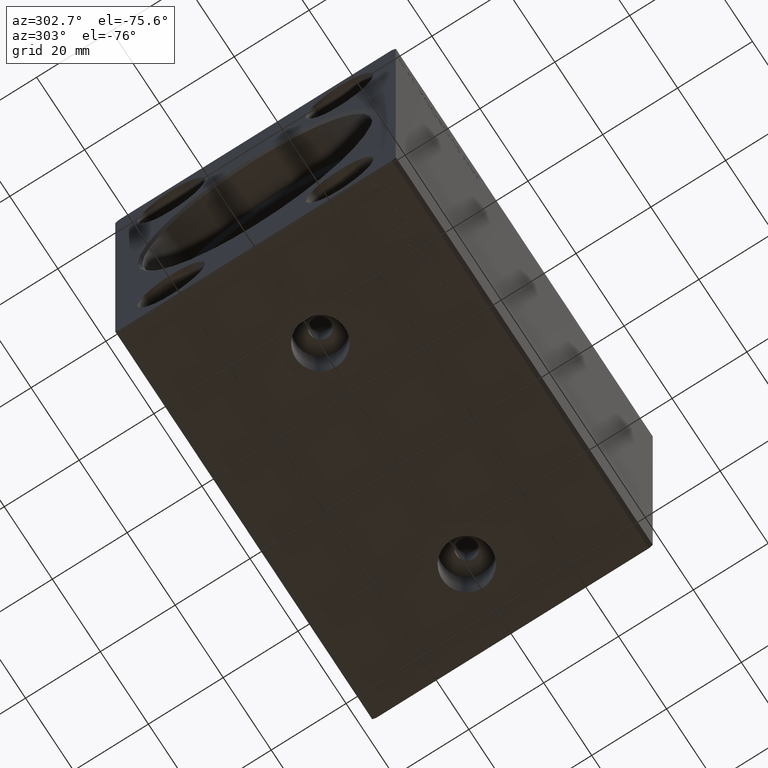
[diagram: clean part render]
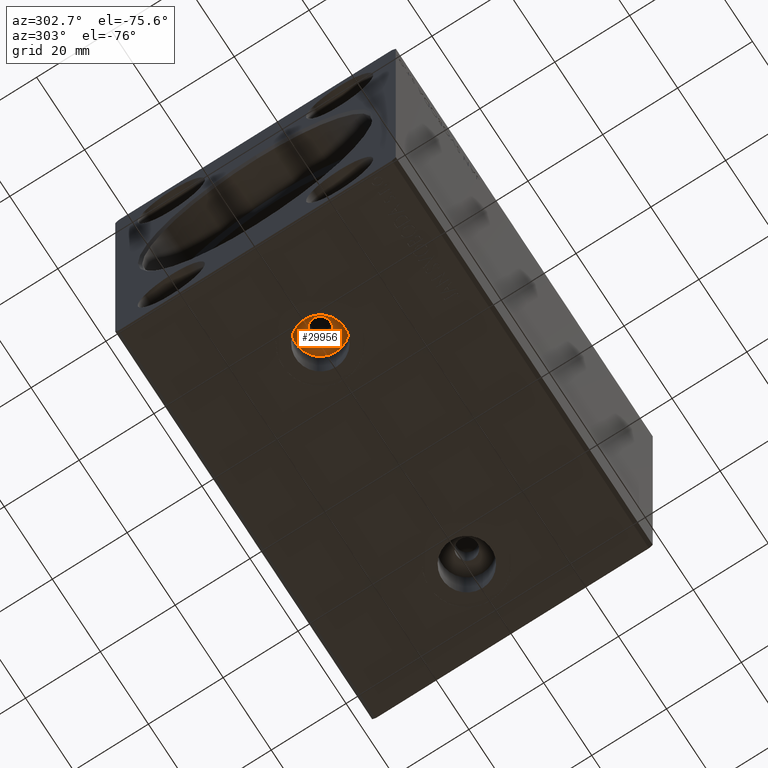
[diagram: same view with one face highlighted and labeled with its STEP entity id]
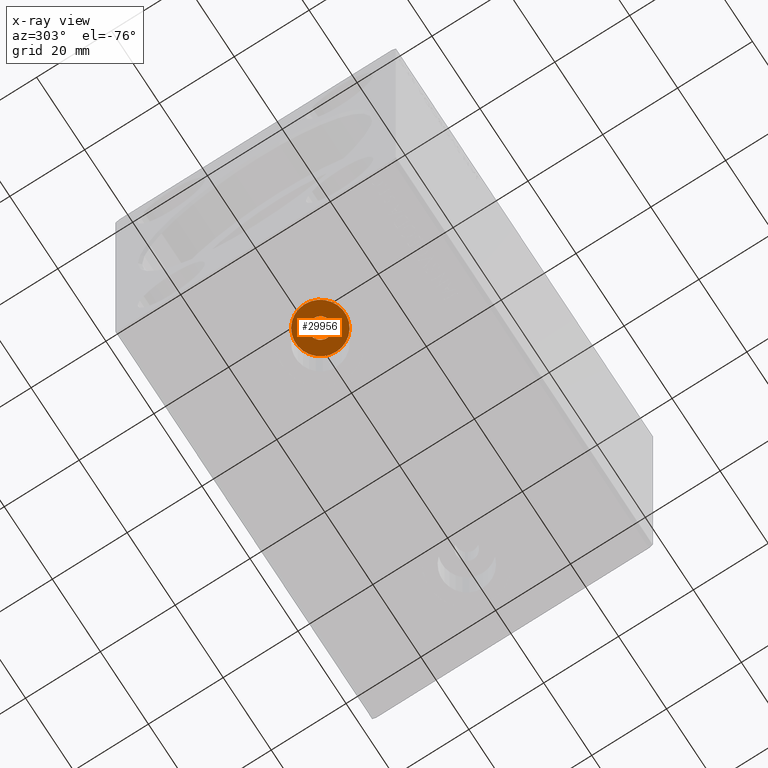
[diagram: x-ray of the same camera — body ghosted, the highlighted face saturated]
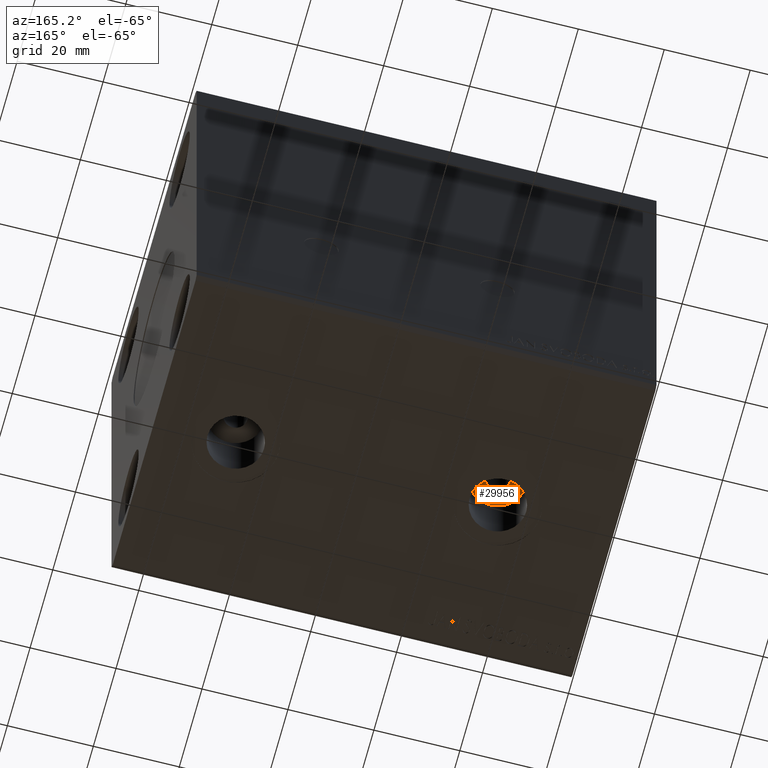
[diagram: same view with one face highlighted and labeled with its STEP entity id]
A machine part, auxiliary view. The second image highlights one B-rep face of the part: STEP entity #29956.
The next image is the same camera in x-ray: the body ghosted, the highlighted face saturated — about 0% of this face is hidden behind the body in this view.
A second angle (auxiliary view) of the same face is appended — the face is thin or edge-on in the first view.
In plain terms, the highlighted planar face has unit normal (0, 0, -1).
Its self-contained STEP definition (entity closure, byte-faithful):
#163 = EDGE_LOOP ( 'NONE', ( #13741, #8207 ) ) ;
#838 = DIRECTION ( 'NONE',  ( -1.000000000000000000, 0.000000000000000000, 0.000000000000000000 ) ) ;
#1193 = DIRECTION ( 'NONE',  ( -1.000000000000000000, 0.000000000000000000, 0.000000000000000000 ) ) ;
#2038 = EDGE_CURVE ( 'NONE', #25038, #18734, #5064, .T. ) ;
#2575 = FACE_BOUND ( 'NONE', #163, .T. ) ;
#2795 = CARTESIAN_POINT ( 'NONE',  ( 20.41999999999999815, -6.135200823405162107E-15, -36.29999999999999716 ) ) ;
#4066 = CARTESIAN_POINT ( 'NONE',  ( 24.25000000000000000, -6.135200823405162107E-15, -36.29999999999999716 ) ) ;
#5064 = CIRCLE ( 'NONE', #27678, 2.749999999999999112 ) ;
#5763 = DIRECTION ( 'NONE',  ( 0.000000000000000000, 0.000000000000000000, -1.000000000000000000 ) ) ;
#7305 = DIRECTION ( 'NONE',  ( 0.000000000000000000, 0.000000000000000000, -1.000000000000000000 ) ) ;
#8207 = ORIENTED_EDGE ( 'NONE', *, *, #14013, .F. ) ;
#9551 = VERTEX_POINT ( 'NONE', #26075 ) ;
#10086 = ORIENTED_EDGE ( 'NONE', *, *, #33323, .T. ) ;
#10902 = CARTESIAN_POINT ( 'NONE',  ( 29.75000000000000000, -5.798422953639640450E-15, -36.29999999999999716 ) ) ;
#12649 = DIRECTION ( 'NONE',  ( -1.000000000000000000, 0.000000000000000000, -0.000000000000000000 ) ) ;
#13403 = CIRCLE ( 'NONE', #38110, 2.749999999999999112 ) ;
#13740 = CIRCLE ( 'NONE', #17867, 6.580000000000002736 ) ;
#13741 = ORIENTED_EDGE ( 'NONE', *, *, #2038, .F. ) ;
#14013 = EDGE_CURVE ( 'NONE', #18734, #25038, #13403, .T. ) ;
#15675 = FACE_OUTER_BOUND ( 'NONE', #29553, .T. ) ;
#17343 = CIRCLE ( 'NONE', #41365, 6.580000000000002736 ) ;
#17598 = CARTESIAN_POINT ( 'NONE',  ( 27.00000000000000000, -6.135200823405162107E-15, -36.29999999999999716 ) ) ;
#17867 = AXIS2_PLACEMENT_3D ( 'NONE', #41711, #21121, #34234 ) ;
#18734 = VERTEX_POINT ( 'NONE', #10902 ) ;
#18851 = DIRECTION ( 'NONE',  ( -1.000000000000000000, 0.000000000000000000, 0.000000000000000000 ) ) ;
#19314 = CARTESIAN_POINT ( 'NONE',  ( 27.00000000000000000, -6.135200823405162107E-15, -36.29999999999999716 ) ) ;
#21121 = DIRECTION ( 'NONE',  ( 0.000000000000000000, 0.000000000000000000, -1.000000000000000000 ) ) ;
#24835 = VERTEX_POINT ( 'NONE', #2795 ) ;
#25038 = VERTEX_POINT ( 'NONE', #4066 ) ;
#26075 = CARTESIAN_POINT ( 'NONE',  ( 33.57999999999999829, -5.329383229566203065E-15, -36.29999999999999716 ) ) ;
#27678 = AXIS2_PLACEMENT_3D ( 'NONE', #42039, #5763, #18851 ) ;
#28561 = PLANE ( 'NONE',  #38376 ) ;
#28766 = DIRECTION ( 'NONE',  ( 0.000000000000000000, 0.000000000000000000, -1.000000000000000000 ) ) ;
#29553 = EDGE_LOOP ( 'NONE', ( #10086, #35387 ) ) ;
#29956 = ADVANCED_FACE ( 'NONE', ( #2575, #15675 ), #28561, .T. ) ;
#30402 = CARTESIAN_POINT ( 'NONE',  ( 27.00000000000000000, -6.135200823405162107E-15, -36.29999999999999716 ) ) ;
#30832 = DIRECTION ( 'NONE',  ( 0.000000000000000000, 0.000000000000000000, -1.000000000000000000 ) ) ;
#33323 = EDGE_CURVE ( 'NONE', #24835, #9551, #13740, .T. ) ;
#34234 = DIRECTION ( 'NONE',  ( -1.000000000000000000, 0.000000000000000000, 0.000000000000000000 ) ) ;
#35387 = ORIENTED_EDGE ( 'NONE', *, *, #37805, .T. ) ;
#37805 = EDGE_CURVE ( 'NONE', #9551, #24835, #17343, .T. ) ;
#38110 = AXIS2_PLACEMENT_3D ( 'NONE', #17598, #7305, #838 ) ;
#38376 = AXIS2_PLACEMENT_3D ( 'NONE', #19314, #28766, #12649 ) ;
#41365 = AXIS2_PLACEMENT_3D ( 'NONE', #30402, #30832, #1193 ) ;
#41711 = CARTESIAN_POINT ( 'NONE',  ( 27.00000000000000000, -6.135200823405162107E-15, -36.29999999999999716 ) ) ;
#42039 = CARTESIAN_POINT ( 'NONE',  ( 27.00000000000000000, -6.135200823405162107E-15, -36.29999999999999716 ) ) ;